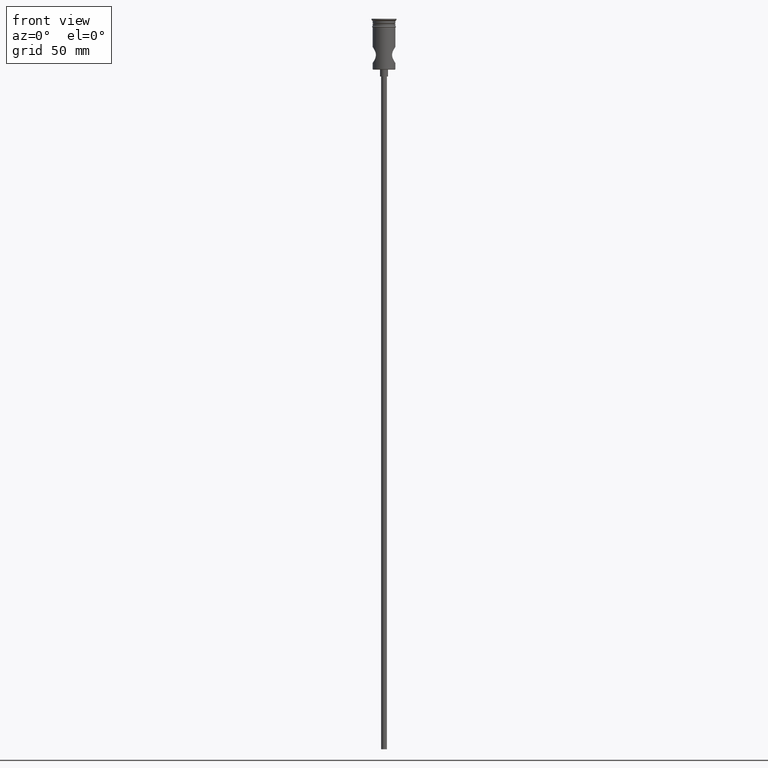
[diagram: clean part render]
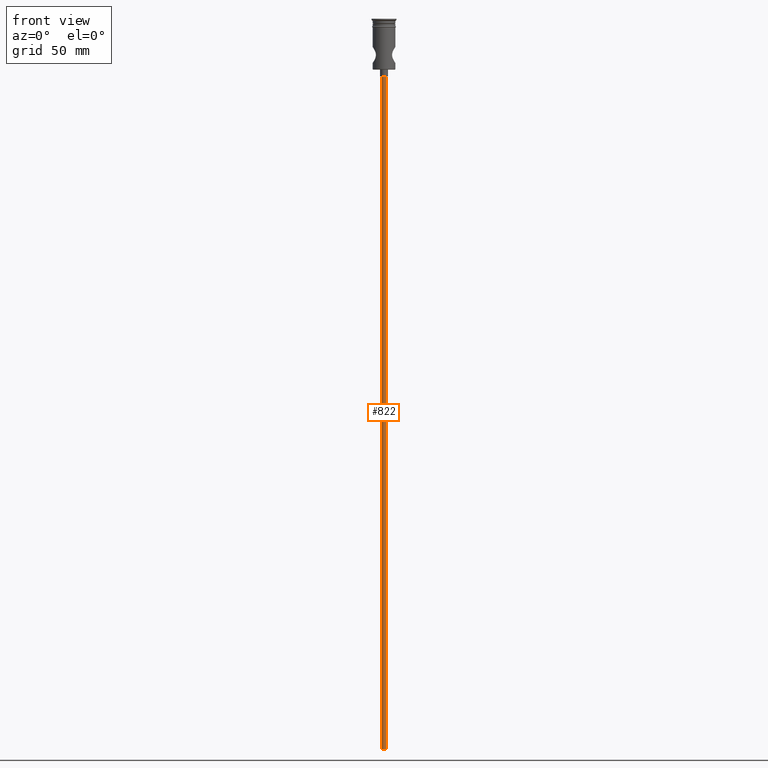
[diagram: same view with one face highlighted and labeled with its STEP entity id]
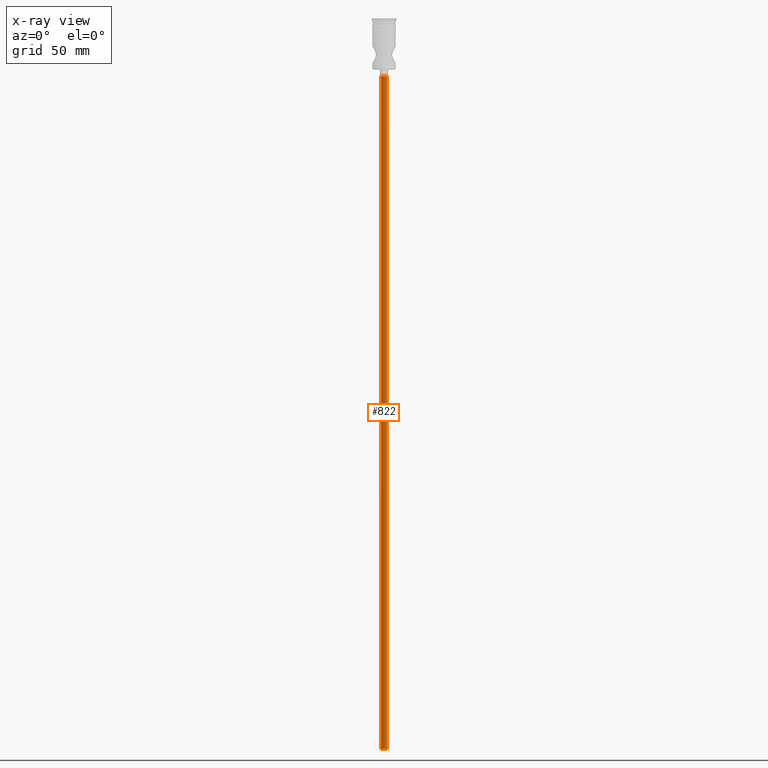
[diagram: x-ray of the same camera — body ghosted, the highlighted face saturated]
A machine part, front view. The second image highlights one B-rep face of the part: STEP entity #822.
The next image is the same camera in x-ray: the body ghosted, the highlighted face saturated — about 0% of this face is hidden behind the body in this view.
In plain terms, the highlighted cylindrical surface (edge-blend (fillet) strip) has radius 1.25 mm, axis along (-0, -0, 1).
Its self-contained STEP definition (entity closure, byte-faithful):
#4 = DIRECTION ( 'NONE',  ( -0.000000000000000000, -0.000000000000000000, 1.000000000000000000 ) ) ;
#123 = AXIS2_PLACEMENT_3D ( 'NONE', #1279, #627, #1379 ) ;
#132 = FACE_OUTER_BOUND ( 'NONE', #171, .T. ) ;
#152 = CIRCLE ( 'NONE', #123, 1.250000000000000000 ) ;
#171 = EDGE_LOOP ( 'NONE', ( #1115, #827, #463, #1058 ) ) ;
#180 = DIRECTION ( 'NONE',  ( 0.000000000000000000, 0.000000000000000000, -1.000000000000000000 ) ) ;
#261 = CARTESIAN_POINT ( 'NONE',  ( -1.250000000000000000, 1.530808498934191571E-16, -322.5000000000000000 ) ) ;
#266 = CARTESIAN_POINT ( 'NONE',  ( 0.000000000000000000, 0.000000000000000000, -25.50000000000000000 ) ) ;
#372 = CARTESIAN_POINT ( 'NONE',  ( 1.250000000000000000, 0.000000000000000000, -322.5000000000000000 ) ) ;
#463 = ORIENTED_EDGE ( 'NONE', *, *, #941, .T. ) ;
#537 = DIRECTION ( 'NONE',  ( -0.000000000000000000, -0.000000000000000000, 1.000000000000000000 ) ) ;
#566 = EDGE_CURVE ( 'NONE', #1370, #979, #152, .T. ) ;
#608 = DIRECTION ( 'NONE',  ( -1.000000000000000000, 0.000000000000000000, 0.000000000000000000 ) ) ;
#627 = DIRECTION ( 'NONE',  ( 0.000000000000000000, 0.000000000000000000, -1.000000000000000000 ) ) ;
#644 = CARTESIAN_POINT ( 'NONE',  ( 0.000000000000000000, 0.000000000000000000, -322.5000000000000000 ) ) ;
#653 = AXIS2_PLACEMENT_3D ( 'NONE', #266, #180, #608 ) ;
#691 = VECTOR ( 'NONE', #4, 1000.000000000000000 ) ;
#726 = DIRECTION ( 'NONE',  ( -0.000000000000000000, -0.000000000000000000, 1.000000000000000000 ) ) ;
#737 = VECTOR ( 'NONE', #726, 1000.000000000000000 ) ;
#750 = DIRECTION ( 'NONE',  ( 1.000000000000000000, 0.000000000000000000, 0.000000000000000000 ) ) ;
#784 = CARTESIAN_POINT ( 'NONE',  ( 1.250000000000000000, 0.000000000000000000, -25.50000000000000000 ) ) ;
#822 = ADVANCED_FACE ( 'NONE', ( #132 ), #1431, .T. ) ;
#827 = ORIENTED_EDGE ( 'NONE', *, *, #566, .F. ) ;
#907 = EDGE_CURVE ( 'NONE', #1208, #1263, #987, .T. ) ;
#941 = EDGE_CURVE ( 'NONE', #1370, #1208, #951, .T. ) ;
#951 = LINE ( 'NONE', #372, #737 ) ;
#979 = VERTEX_POINT ( 'NONE', #261 ) ;
#987 = CIRCLE ( 'NONE', #653, 1.250000000000000000 ) ;
#1018 = CARTESIAN_POINT ( 'NONE',  ( 1.250000000000000000, 0.000000000000000000, -322.5000000000000000 ) ) ;
#1058 = ORIENTED_EDGE ( 'NONE', *, *, #907, .T. ) ;
#1093 = AXIS2_PLACEMENT_3D ( 'NONE', #644, #537, #750 ) ;
#1115 = ORIENTED_EDGE ( 'NONE', *, *, #1186, .F. ) ;
#1186 = EDGE_CURVE ( 'NONE', #979, #1263, #1352, .T. ) ;
#1208 = VERTEX_POINT ( 'NONE', #784 ) ;
#1262 = CARTESIAN_POINT ( 'NONE',  ( -1.250000000000000000, 1.530808498934191571E-16, -25.50000000000000000 ) ) ;
#1263 = VERTEX_POINT ( 'NONE', #1262 ) ;
#1279 = CARTESIAN_POINT ( 'NONE',  ( 0.000000000000000000, 0.000000000000000000, -322.5000000000000000 ) ) ;
#1352 = LINE ( 'NONE', #1439, #691 ) ;
#1370 = VERTEX_POINT ( 'NONE', #1018 ) ;
#1379 = DIRECTION ( 'NONE',  ( -1.000000000000000000, 0.000000000000000000, 0.000000000000000000 ) ) ;
#1431 = CYLINDRICAL_SURFACE ( 'NONE', #1093, 1.250000000000000000 ) ;
#1439 = CARTESIAN_POINT ( 'NONE',  ( -1.250000000000000000, 1.530808498934191571E-16, -322.5000000000000000 ) ) ;